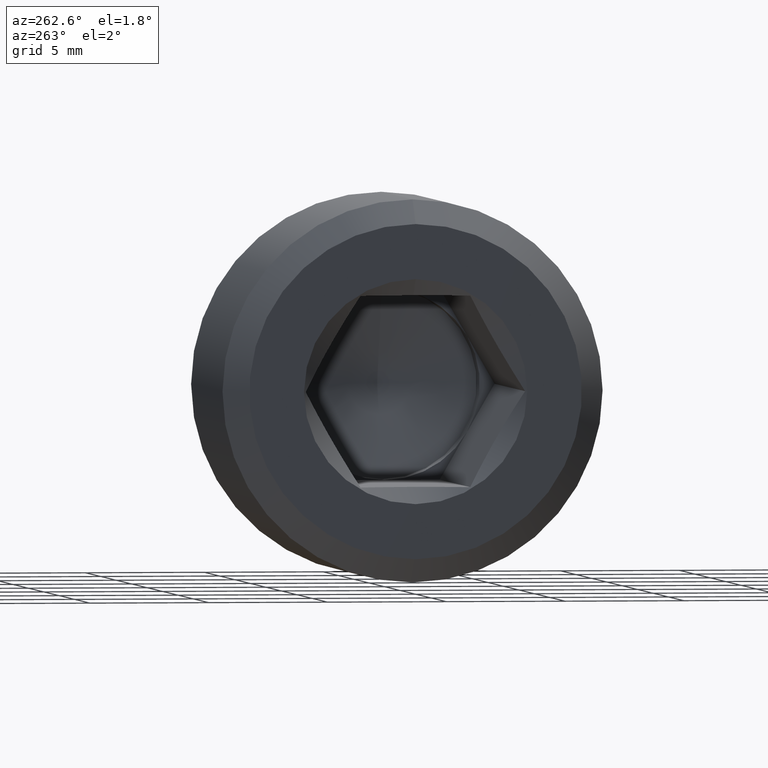
[diagram: clean part render]
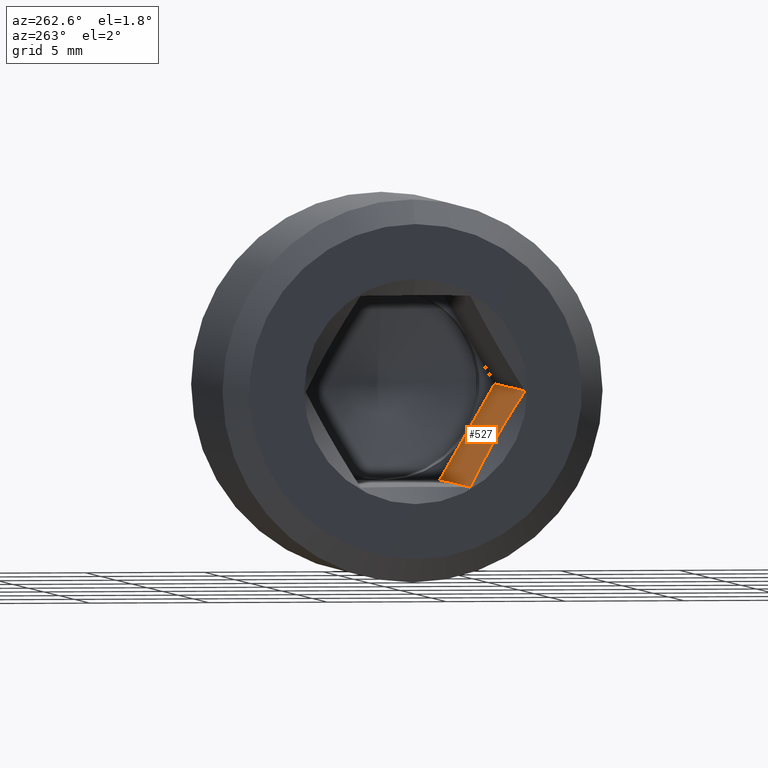
[diagram: same view with one face highlighted and labeled with its STEP entity id]
A machine part, auxiliary view. The second image highlights one B-rep face of the part: STEP entity #527.
In plain terms, the highlighted planar face has unit normal (0, 0.866, 0.5).
Its self-contained STEP definition (entity closure, byte-faithful):
#16 = CARTESIAN_POINT ( 'NONE',  ( 0.2616367096296722800, -2.489839939905183800, -3.687470721369985300 ) ) ;
#24 = DIRECTION ( 'NONE',  ( 0.0000000000000000000, 0.4999999999999997800, -0.8660254037844387100 ) ) ;
#26 = FACE_OUTER_BOUND ( 'NONE', #501, .T. ) ;
#48 = DIRECTION ( 'NONE',  ( -1.000000000000000000, 0.0000000000000000000, 0.0000000000000000000 ) ) ;
#54 = LINE ( 'NONE', #241, #323 ) ;
#73 = EDGE_CURVE ( 'NONE', #546, #337, #303, .T. ) ;
#115 = CARTESIAN_POINT ( 'NONE',  ( 0.6397945956621468000, -3.859617540109126800, -1.314946322746983100 ) ) ;
#119 = B_SPLINE_CURVE_WITH_KNOTS ( 'NONE', 3,
 ( #606, #16, #164, #215, #610, #402, #516, #301, #115, #163, #160, #460 ),
 .UNSPECIFIED., .F., .F.,
 ( 4, 2, 2, 2, 2, 4 ),
 ( 2.544326305570727600E-007, 0.001193013274720901800, 0.001789392695766074400, 0.002385772116811247300, 0.003578530958901591700, 0.004771289800991936600 ),
 .UNSPECIFIED. ) ;
#140 = VERTEX_POINT ( 'NONE', #320 ) ;
#147 = CARTESIAN_POINT ( 'NONE',  ( 10.00000000000000000, -4.618802153517007600, 7.047314121155778800E-016 ) ) ;
#152 = DIRECTION ( 'NONE',  ( 0.0000000000000000000, -0.4999999999999997800, 0.8660254037844387100 ) ) ;
#153 = DIRECTION ( 'NONE',  ( -1.000000000000000000, 0.0000000000000000000, 0.0000000000000000000 ) ) ;
#160 = CARTESIAN_POINT ( 'NONE',  ( 0.2626996021475743200, -4.437300397852643700, -0.3143702624736273200 ) ) ;
#163 = CARTESIAN_POINT ( 'NONE',  ( 0.4183282770534254600, -4.250418377850120800, -0.6380594161391018900 ) ) ;
#164 = CARTESIAN_POINT ( 'NONE',  ( 0.4150543676130458700, -2.674348956204076100, -3.367891730685749900 ) ) ;
#181 = CARTESIAN_POINT ( 'NONE',  ( 10.00000000000000000, -4.618802153517007600, 7.047314121155778800E-016 ) ) ;
#197 = ORIENTED_EDGE ( 'NONE', *, *, #276, .T. ) ;
#215 = CARTESIAN_POINT ( 'NONE',  ( 0.5794568686004372100, -2.961012360658761700, -2.871376149499566700 ) ) ;
#241 = CARTESIAN_POINT ( 'NONE',  ( 10.00000000000000000, -4.618802153517007600, 7.047314121155778800E-016 ) ) ;
#252 = LINE ( 'NONE', #287, #538 ) ;
#276 = EDGE_CURVE ( 'NONE', #140, #579, #365, .T. ) ;
#287 = CARTESIAN_POINT ( 'NONE',  ( 10.00000000000000000, -4.618802153517007600, 7.047314121155778800E-016 ) ) ;
#292 = DIRECTION ( 'NONE',  ( 0.0000000000000000000, 0.4999999999999997800, -0.8660254037844387100 ) ) ;
#301 = CARTESIAN_POINT ( 'NONE',  ( 0.7008480878080843900, -3.661454931702502700, -1.658174028667635600 ) ) ;
#303 = LINE ( 'NONE', #181, #471 ) ;
#320 = CARTESIAN_POINT ( 'NONE',  ( 10.00000000000000000, -2.309401076758504700, -4.000000000000000900 ) ) ;
#323 = VECTOR ( 'NONE', #292, 1000.000000000000100 ) ;
#337 = VERTEX_POINT ( 'NONE', #518 ) ;
#338 = EDGE_CURVE ( 'NONE', #579, #512, #119, .T. ) ;
#363 = CARTESIAN_POINT ( 'NONE',  ( 0.08119784648299269200, -4.618802153517007600, 7.047314121155778800E-016 ) ) ;
#365 = LINE ( 'NONE', #450, #617 ) ;
#402 = CARTESIAN_POINT ( 'NONE',  ( 0.6833601162637197300, -3.256788653496307500, -2.359076582630565100 ) ) ;
#414 = CARTESIAN_POINT ( 'NONE',  ( 10.00000000000000000, -4.618802153517007600, 7.047314121155778800E-016 ) ) ;
#415 = ORIENTED_EDGE ( 'NONE', *, *, #568, .F. ) ;
#433 = ORIENTED_EDGE ( 'NONE', *, *, #608, .T. ) ;
#450 = CARTESIAN_POINT ( 'NONE',  ( 10.00000000000000000, -2.309401076758504700, -4.000000000000000900 ) ) ;
#460 = CARTESIAN_POINT ( 'NONE',  ( 0.08119784648299269200, -4.618802153517007600, 7.047314121155778800E-016 ) ) ;
#468 = PLANE ( 'NONE',  #482 ) ;
#471 = VECTOR ( 'NONE', #24, 1000.000000000000100 ) ;
#482 = AXIS2_PLACEMENT_3D ( 'NONE', #414, #580, #152 ) ;
#501 = EDGE_LOOP ( 'NONE', ( #628, #415, #621, #433, #197 ) ) ;
#512 = VERTEX_POINT ( 'NONE', #363 ) ;
#516 = CARTESIAN_POINT ( 'NONE',  ( 0.6995623995302751000, -3.359047673500611600, -2.181958764450910900 ) ) ;
#518 = CARTESIAN_POINT ( 'NONE',  ( 10.00000000000000000, -3.464101615137755300, -1.999999999999999100 ) ) ;
#527 = ADVANCED_FACE ( 'NONE', ( #26 ), #468, .T. ) ;
#538 = VECTOR ( 'NONE', #48, 1000.000000000000000 ) ;
#546 = VERTEX_POINT ( 'NONE', #147 ) ;
#568 = EDGE_CURVE ( 'NONE', #546, #512, #252, .T. ) ;
#579 = VERTEX_POINT ( 'NONE', #631 ) ;
#580 = DIRECTION ( 'NONE',  ( 0.0000000000000000000, 0.8660254037844388200, 0.4999999999999998300 ) ) ;
#606 = CARTESIAN_POINT ( 'NONE',  ( 0.08119784648299269200, -2.309401076758504700, -4.000000000000000900 ) ) ;
#608 = EDGE_CURVE ( 'NONE', #337, #140, #54, .T. ) ;
#610 = CARTESIAN_POINT ( 'NONE',  ( 0.6231881700867347700, -3.058234211556875700, -2.702982964138148000 ) ) ;
#617 = VECTOR ( 'NONE', #153, 1000.000000000000000 ) ;
#621 = ORIENTED_EDGE ( 'NONE', *, *, #73, .T. ) ;
#628 = ORIENTED_EDGE ( 'NONE', *, *, #338, .T. ) ;
#631 = CARTESIAN_POINT ( 'NONE',  ( 0.08119784648299269200, -2.309401076758504700, -4.000000000000000900 ) ) ;